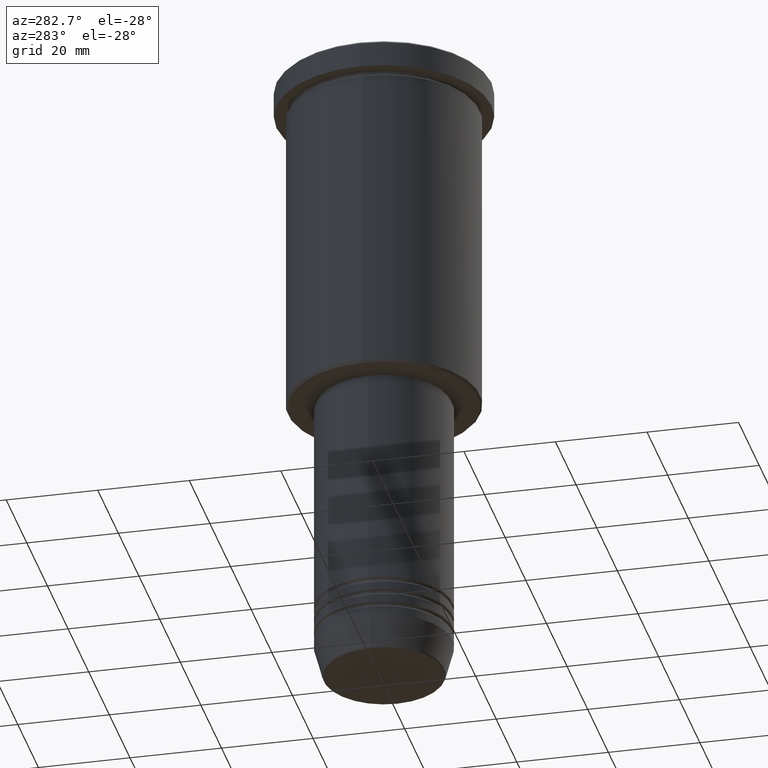
[diagram: clean part render]
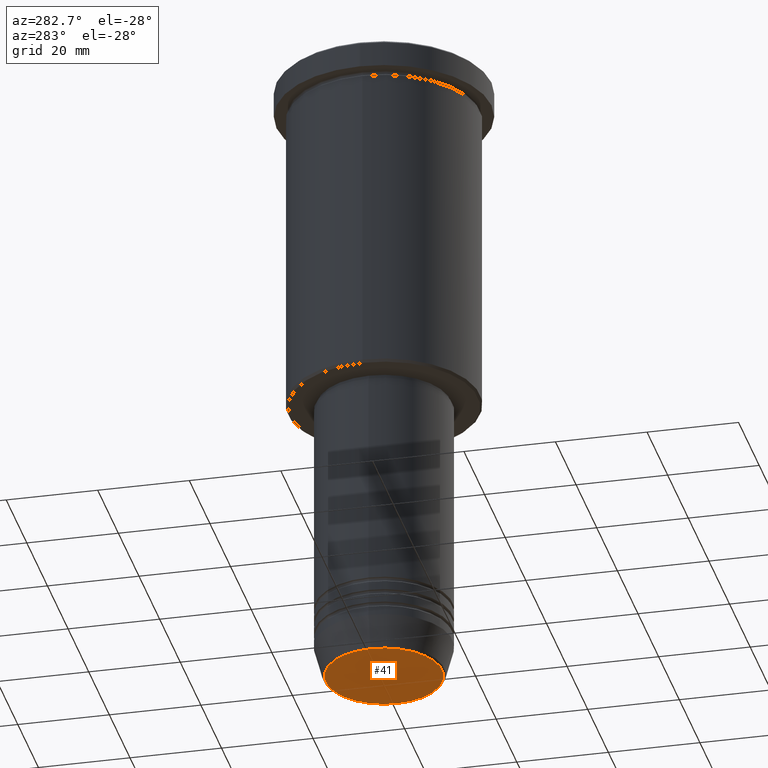
[diagram: same view with one face highlighted and labeled with its STEP entity id]
A machine part, auxiliary view. The second image highlights one B-rep face of the part: STEP entity #41.
In plain terms, the highlighted planar face has unit normal (0, -0, 1).
Its self-contained STEP definition (entity closure, byte-faithful):
#41 = ADVANCED_FACE ( 'NONE', ( #115 ), #989, .F. ) ;
#115 = FACE_OUTER_BOUND ( 'NONE', #668, .T. ) ;
#223 = CARTESIAN_POINT ( 'NONE',  ( 0.000000000000000000, 0.000000000000000000, -141.0000000000000000 ) ) ;
#227 = AXIS2_PLACEMENT_3D ( 'NONE', #223, #567, #841 ) ;
#273 = DIRECTION ( 'NONE',  ( 0.000000000000000000, 0.000000000000000000, -1.000000000000000000 ) ) ;
#367 = EDGE_CURVE ( 'NONE', #492, #1123, #1154, .T. ) ;
#377 = DIRECTION ( 'NONE',  ( 1.000000000000000000, 0.000000000000000000, 0.000000000000000000 ) ) ;
#400 = ORIENTED_EDGE ( 'NONE', *, *, #1094, .T. ) ;
#492 = VERTEX_POINT ( 'NONE', #991 ) ;
#503 = CARTESIAN_POINT ( 'NONE',  ( 0.000000000000000000, 0.000000000000000000, -141.0000000000000000 ) ) ;
#567 = DIRECTION ( 'NONE',  ( 0.000000000000000000, 0.000000000000000000, -1.000000000000000000 ) ) ;
#665 = AXIS2_PLACEMENT_3D ( 'NONE', #876, #273, #377 ) ;
#668 = EDGE_LOOP ( 'NONE', ( #904, #400 ) ) ;
#704 = CIRCLE ( 'NONE', #665, 12.74069215899265828 ) ;
#752 = DIRECTION ( 'NONE',  ( 0.000000000000000000, -0.000000000000000000, 1.000000000000000000 ) ) ;
#841 = DIRECTION ( 'NONE',  ( 1.000000000000000000, 0.000000000000000000, 0.000000000000000000 ) ) ;
#876 = CARTESIAN_POINT ( 'NONE',  ( 0.000000000000000000, 0.000000000000000000, -141.0000000000000000 ) ) ;
#883 = AXIS2_PLACEMENT_3D ( 'NONE', #503, #752, #1117 ) ;
#904 = ORIENTED_EDGE ( 'NONE', *, *, #367, .T. ) ;
#989 = PLANE ( 'NONE',  #883 ) ;
#991 = CARTESIAN_POINT ( 'NONE',  ( 12.74069215899265828, 0.000000000000000000, -141.0000000000000000 ) ) ;
#1028 = CARTESIAN_POINT ( 'NONE',  ( -12.74069215899265828, 1.589857736427681035E-15, -141.0000000000000000 ) ) ;
#1094 = EDGE_CURVE ( 'NONE', #1123, #492, #704, .T. ) ;
#1117 = DIRECTION ( 'NONE',  ( 1.000000000000000000, 0.000000000000000000, 0.000000000000000000 ) ) ;
#1123 = VERTEX_POINT ( 'NONE', #1028 ) ;
#1154 = CIRCLE ( 'NONE', #227, 12.74069215899265828 ) ;